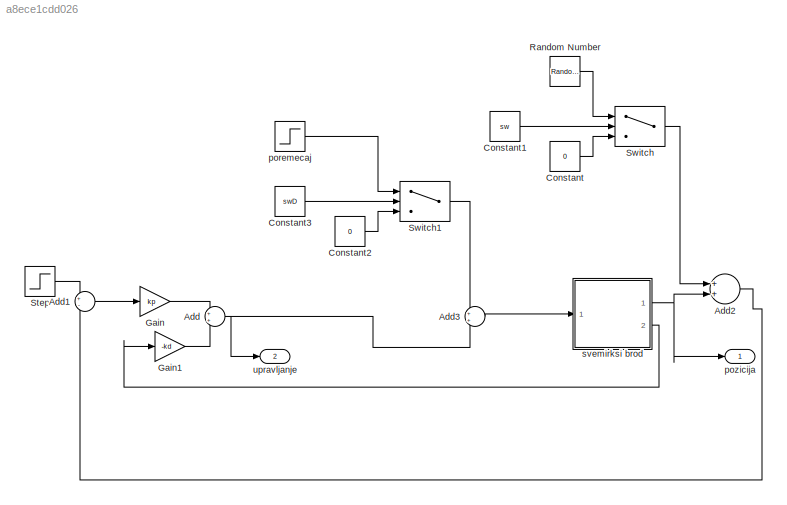
MODEL slx_a8ece1cdd026
KIND model
CONFIG AbsTol = auto
CONFIG FixedStep = 0.01
CONFIG MaxStep = auto
CONFIG MinStep = auto
CONFIG RelTol = 1e-3
CONFIG SampleTimeConstraint = Unconstrained
CONFIG Solver = ode5
CONFIG SolverMode = Auto
CONFIG SolverName = ode5
CONFIG StartTime = 0.0
CONFIG StopTime = 20
BLOCK [Sum] Add
  IconShape = round
  InputSameDT = off
  OutDataTypeStr = Inherit: Inherit via internal rule
  Ports = [2, 1]
  SaturateOnIntegerOverflow = off
BLOCK [Sum] Add1
  IconShape = round
  InputSameDT = off
  Inputs = +-
  OutDataTypeStr = Inherit: Inherit via internal rule
  Ports = [2, 1]
  SaturateOnIntegerOverflow = off
BLOCK [Sum] Add2
  InputSameDT = off
  OutDataTypeStr = Inherit: Inherit via internal rule
  Ports = [2, 1]
  SaturateOnIntegerOverflow = off
BLOCK [Sum] Add3
  IconShape = round
  InputSameDT = off
  OutDataTypeStr = Inherit: Inherit via internal rule
  Ports = [2, 1]
  SaturateOnIntegerOverflow = off
BLOCK [Constant] Constant
  Value = 0
BLOCK [Constant] Constant1
  Value = sw
BLOCK [Constant] Constant2
  Value = 0
BLOCK [Constant] Constant3
  Value = swD
BLOCK [Gain] Gain
  Gain = kp
  OutDataTypeStr = Inherit: Inherit via internal rule
  ParamDataTypeStr = Inherit: Inherit via internal rule
  SaturateOnIntegerOverflow = off
BLOCK [Gain] Gain1
  Gain = -kd
  OutDataTypeStr = Inherit: Inherit via internal rule
  ParamDataTypeStr = Inherit: Inherit via internal rule
  SaturateOnIntegerOverflow = off
BLOCK [RandomNumber] Random Number
  Variance = 0.01
BLOCK [Step] Step
  After = r
  SampleTime = 0
  Time = 0
BLOCK [Switch] Switch
  Criteria = u2 > Threshold
  InputSameDT = off
  SaturateOnIntegerOverflow = off
  Threshold = 0.5
BLOCK [Switch] Switch1
  Criteria = u2 > Threshold
  InputSameDT = off
  SaturateOnIntegerOverflow = off
  Threshold = 0.5
BLOCK [Step] poremecaj
  After = 3
  SampleTime = 0
BLOCK [Outport] pozicija
  IconDisplay = Port number
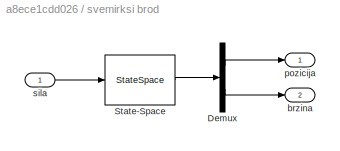
BLOCK [SubSystem] svemirksi brod
  Ports = [1, 2]
  RequestExecContextInheritance = off
  Variant = off
BLOCK [Demux] svemirksi brod/Demux
  DisplayOption = bar
  Outputs = 2
  Ports = [1, 2]
BLOCK [StateSpace] svemirksi brod/State-Space
  A = [0 1;0 -b/m]
  B = [0;1/m]
  C = [1 0; 0 1]
  D = [0;0]
  Ports = [1, 1]
  X0 = 0
BLOCK [Outport] svemirksi brod/brzina
  IconDisplay = Port number
  Port = 2
BLOCK [Outport] svemirksi brod/pozicija
  IconDisplay = Port number
BLOCK [Inport] svemirksi brod/sila
  IconDisplay = Port number
BLOCK [Outport] upravljanje
  IconDisplay = Port number
  Port = 2
LINE Add1:1 -> Gain:1
LINE Add2:1 -> Add1:2
LINE Add3:1 -> svemirksi brod:1
NET Add:1 -> Add3:2, upravljanje:1
LINE Constant1:1 -> Switch:2
LINE Constant2:1 -> Switch1:3
LINE Constant3:1 -> Switch1:2
LINE Constant:1 -> Switch:3
LINE Gain1:1 -> Add:2
LINE Gain:1 -> Add:1
LINE Random Number:1 -> Switch:1
LINE Step:1 -> Add1:1
LINE Switch1:1 -> Add3:1
LINE Switch:1 -> Add2:1
LINE poremecaj:1 -> Switch1:1
LINE svemirksi brod/Demux:1 -> svemirksi brod/pozicija:1
LINE svemirksi brod/Demux:2 -> svemirksi brod/brzina:1
LINE svemirksi brod/State-Space:1 -> svemirksi brod/Demux:1
LINE svemirksi brod/sila:1 -> svemirksi brod/State-Space:1
NET svemirksi brod:1 -> Add2:2, pozicija:1
LINE svemirksi brod:2 -> Gain1:1
note: NET lines group one-source signal fan-out (src -> all destinations, sorted); 1:1 wires keep LINE
